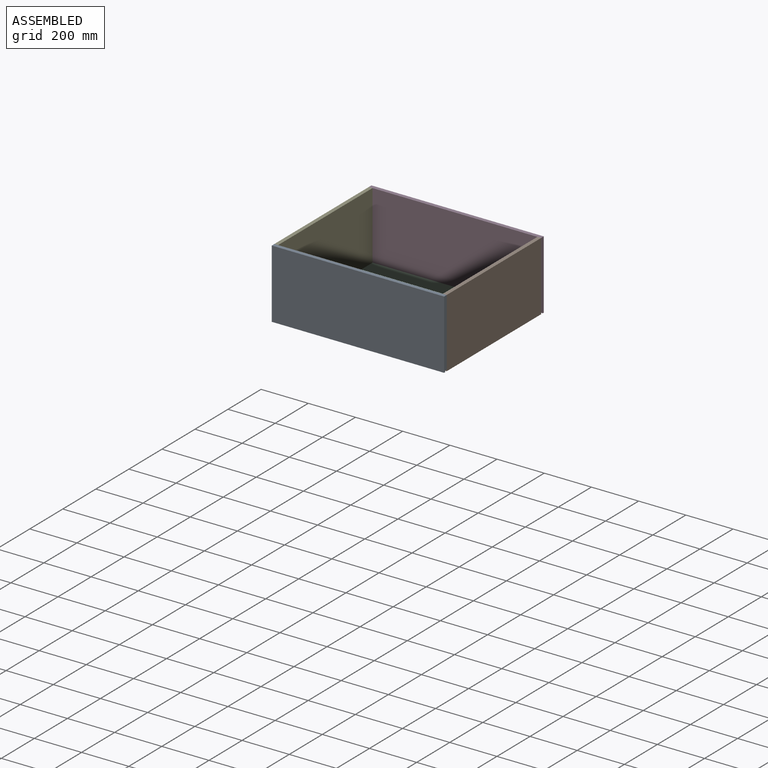
[diagram: assembled view]
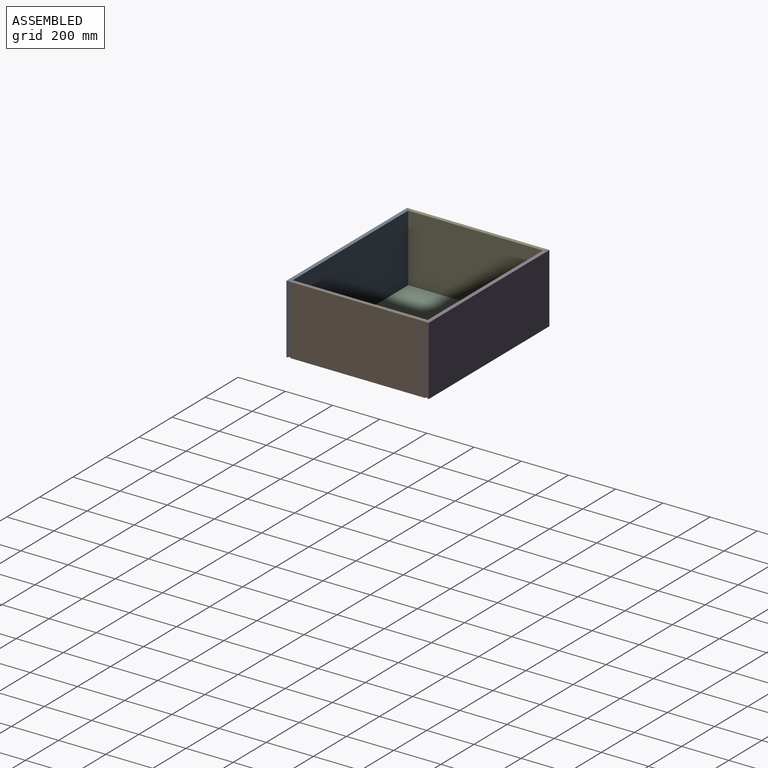
[diagram: assembled view, second angle]
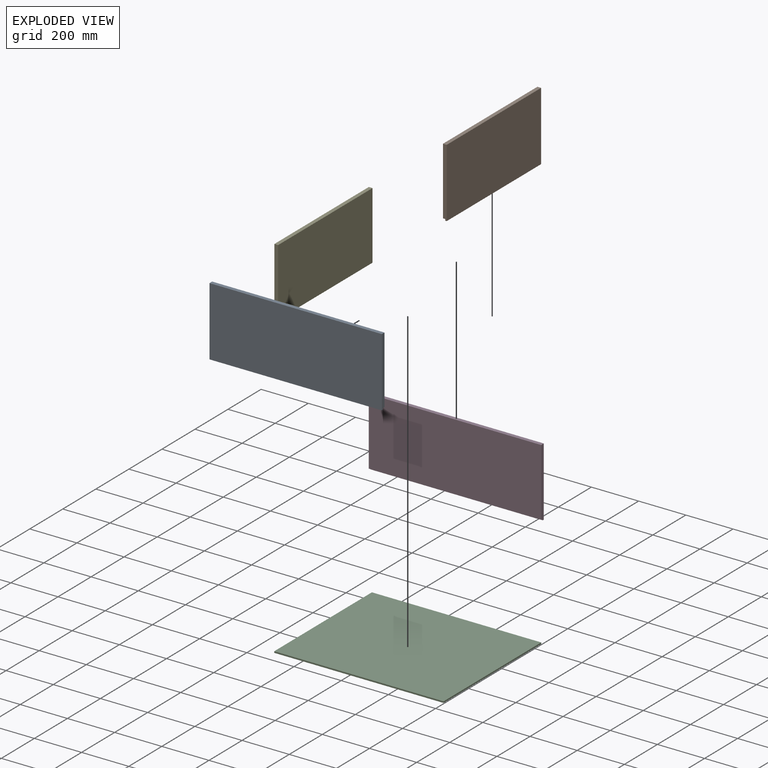
[diagram: exploded view]
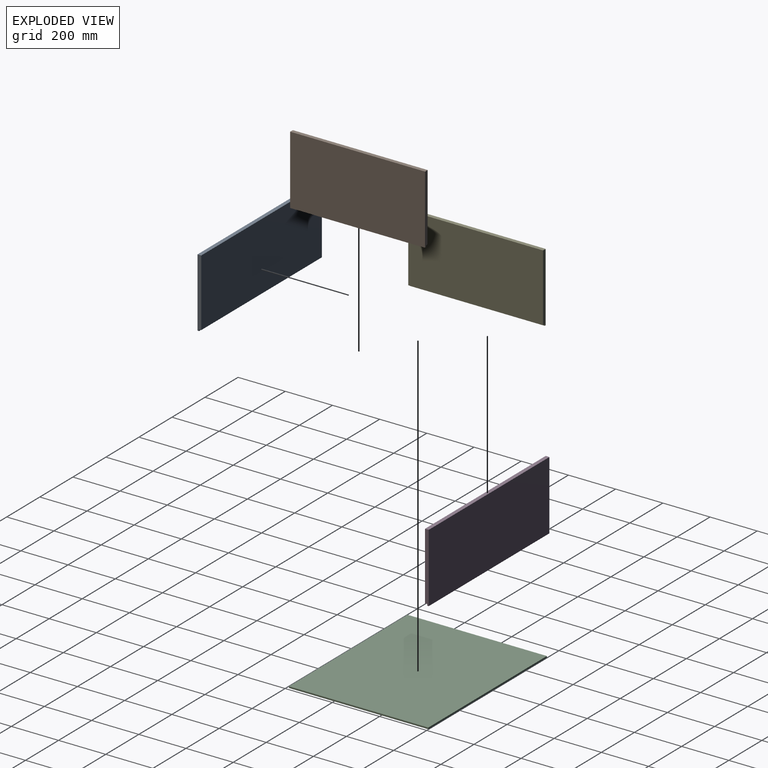
[diagram: exploded view, second angle]
ASSEMBLY  parts=5 mates=11
PART A: 8 faces, bbox 730.3x15.9x292.1 mm
  f0: plane 730.25x285.75mm, normal (0,1,0), area 208668.9mm2, adj f1,f2,f4,f6
  f1: plane 730.25x15.88mm, normal (0,0,1), area 11592.7mm2, adj f0,f2,f4,f5
  f2: plane 292.1x15.88mm, normal (-1,0,0), area 4576.6mm2, adj f0,f1,f3,f5,f6,f7
  f3: plane 730.25x6.35mm, normal (0,0,-1), area 4637.1mm2, adj f2,f4,f5,f7
  f4: plane 292.1x15.88mm, normal (1,0,0), area 4576.6mm2, adj f0,f1,f3,f5,f6,f7
  f5: plane 730.25x292.1mm, normal (0,-1,0), area 213306mm2, adj f1,f2,f3,f4
  f6: plane 730.25x9.53mm, normal (0,0,-1), area 6955.6mm2, adj f0,f2,f4,f7
  f7: plane 730.25x6.35mm, normal (0,1,0), area 4637.1mm2, adj f2,f3,f4,f6
PART B: 8 faces, bbox 15.9x571.5x292.1 mm
  f0: plane 571.5x6.35mm, normal (0,0,-1), area 3629mm2, adj f1,f3,f4,f7
  f1: plane 292.1x15.88mm, normal (0,1,0), area 4576.6mm2, adj f0,f2,f4,f5,f6,f7
  f2: plane 571.5x15.88mm, normal (0,0,1), area 9072.6mm2, adj f1,f3,f4,f5
  f3: plane 292.1x15.88mm, normal (0,-1,0), area 4576.6mm2, adj f0,f2,f4,f5,f6,f7
  f4: plane 571.5x292.1mm, normal (1,0,0), area 166935.1mm2, adj f0,f1,f2,f3
  f5: plane 571.5x285.75mm, normal (-1,0,0), area 163306.1mm2, adj f1,f2,f3,f6
  f6: plane 571.5x9.53mm, normal (0,0,-1), area 5443.5mm2, adj f1,f3,f5,f7
  f7: plane 571.5x6.35mm, normal (-1,0,0), area 3629mm2, adj f0,f1,f3,f6
PART C: 6 faces, bbox 717.6x590.6x6.4 mm
  f0: plane 717.55x6.35mm, normal (0,1,0), area 4556.4mm2, adj f1,f3,f4,f5
  f1: plane 590.55x6.35mm, normal (-1,0,0), area 3750mm2, adj f0,f2,f4,f5
  f2: plane 717.55x6.35mm, normal (0,-1,0), area 4556.4mm2, adj f1,f3,f4,f5
  f3: plane 590.55x6.35mm, normal (1,0,0), area 3750mm2, adj f0,f2,f4,f5
  f4: plane 717.55x590.55mm, normal (0,0,1), area 423749.2mm2, adj f0,f1,f2,f3
  f5: plane 717.55x590.55mm, normal (0,0,-1), area 423749.2mm2, adj f0,f1,f2,f3
PART D: same geometry as A
PART E: same geometry as B
PLACE A t=(327.49,1436.52,1579.65)mm
PLACE B t=(405.74,1585.49,1518)mm
PLACE C t=(-668.35,1479.43,1565.08)mm
PLACE D rot(axis=(0,0,1),180deg) t=(-214.51,2008.02,1579.65)mm
PLACE E rot(axis=(0,0,-1),180deg) t=(-292.76,1859.04,1518)mm
MATE planar A.f1 <-> E.f2  axis (0,0,1) through (56.49,1428.58,1857.18)mm
MATE planar E.f1 <-> A.f0  axis (0,-1,0) through (-300.74,1436.52,1713.02)mm
MATE planar A.f6 <-> C.f4  axis (0,0,-1) through (56.49,1431.75,1571.43)mm
MATE planar B.f3 <-> A.f0  axis (0,-1,0) through (413.72,1436.52,1713.02)mm
MATE planar A.f1 <-> B.f2  axis (0,0,1) through (56.49,1428.58,1857.18)mm
MATE planar D.f0 <-> B.f1  axis (0,-1,0) through (56.49,2008.02,1714.3)mm
MATE planar D.f1 <-> B.f2  axis (0,0,1) through (56.49,2015.95,1857.18)mm
MATE planar C.f0 <-> D.f7  axis (0,1,0) through (56.49,2017.54,1568.25)mm
MATE planar E.f4 <-> A.f2  axis (-1,0,0) through (-308.64,1722.27,1711.13)mm
MATE planar A.f4 <-> B.f4  axis (1,0,0) through (421.61,1428.54,1713.02)mm
MATE planar D.f2 <-> B.f4  axis (1,0,0) through (421.61,2016,1713.02)mm
